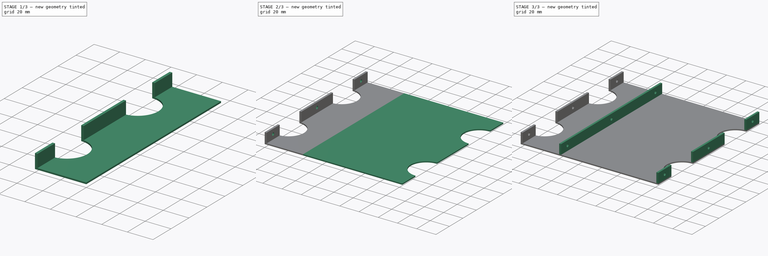
[diagram: build sequence overview — one tinted view per stage of 3, left to right]
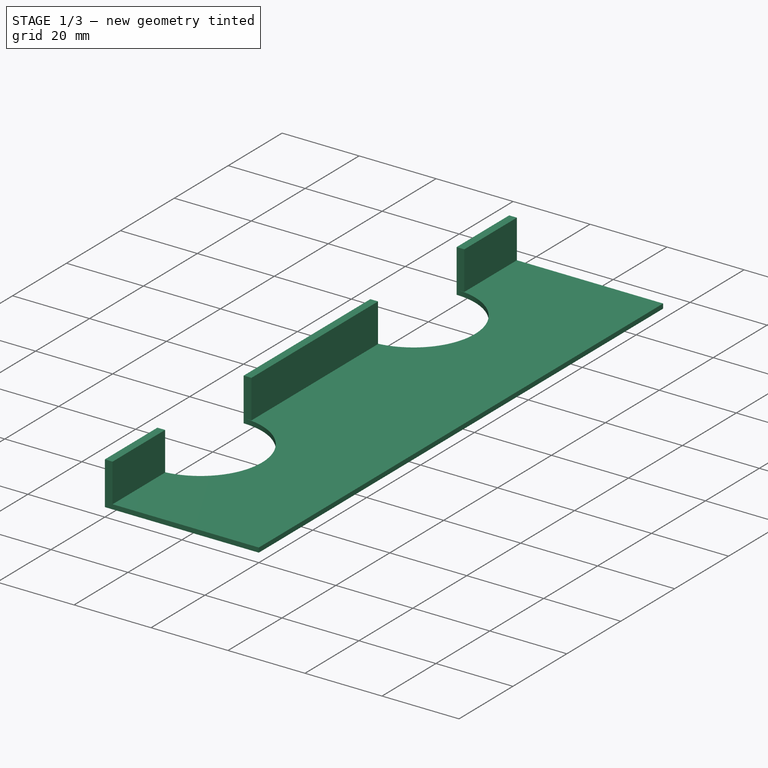
[diagram: stage 1 of 3 — iso view after this stage's code; geometry added in this stage tinted green]
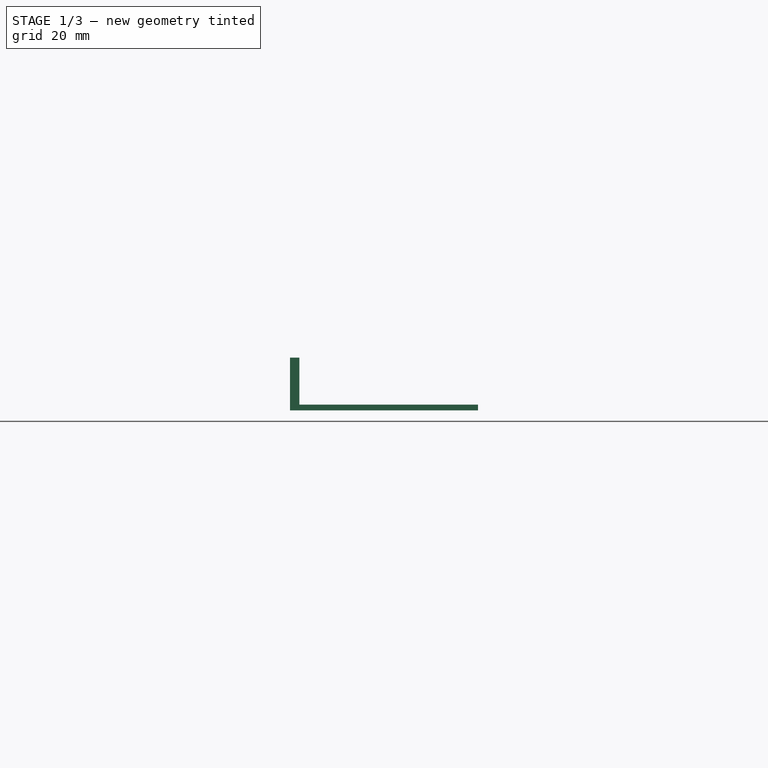
[diagram: stage 1 of 3 — front view after this stage's code; geometry added in this stage tinted green]
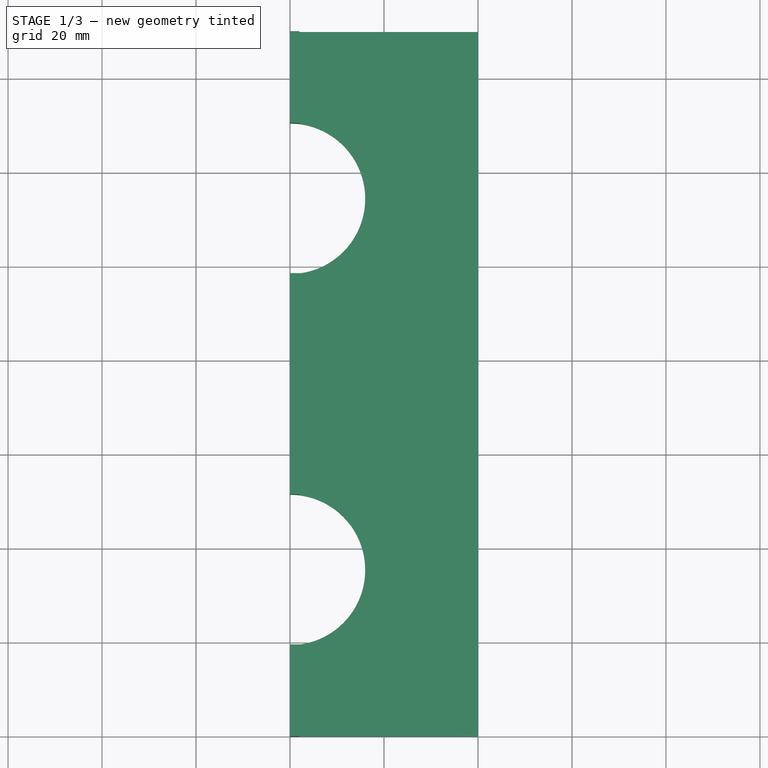
[diagram: stage 1 of 3 — top view after this stage's code; geometry added in this stage tinted green]
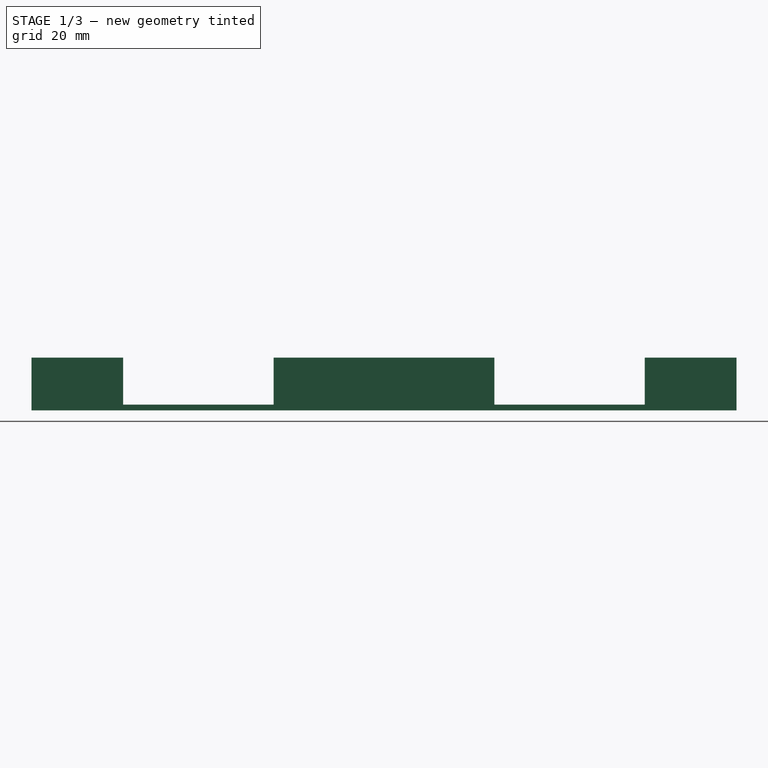
[diagram: stage 1 of 3 — right view after this stage's code; geometry added in this stage tinted green]
FCSTD DOCUMENT  (FreeCAD 0.18R16131 (Git))
Label: Model
License: CreativeCommons Attribution-NonCommercial-NoDerivatives
LicenseURL: http://creativecommons.org/licenses/by-nc-nd/4.0/
objects: Sketcher::SketchObject×6, PartDesign::Pad×4, PartDesign::Pocket×2, PartDesign::Body×2
note: 20 computed .brp shape members not serialized (recipe doc carries the construction recipe); baked Part::Feature solids carry a one-line shape summary decoded from their .brp

FEATURE [PartDesign::Body] Body  label="Left"
  Group = -> [Sketch,Pad,Sketch001,Pad001,Sketch002,Pocket]
  Origin = -> Origin
  Tip = -> Pocket
FEATURE [Sketcher::SketchObject] Sketch003
  MapMode = 5
  Support = -> [XY_Plane001]
  sketch-geometry (8):
    g0: LineSegment StartX=0 StartY=0 StartZ=0 EndX=-40 EndY=0 EndZ=0
    g1: LineSegment StartX=-40 StartY=150 StartZ=0 EndX=0 EndY=150 EndZ=0
    g2: LineSegment StartX=0 StartY=150 StartZ=0 EndX=0 EndY=0 EndZ=0
    g3: ArcOfCircle CenterX=-40 CenterY=114.5 CenterZ=0 NormalX=0 NormalY=0 NormalZ=1 AngleXU=0 Radius=16 StartAngle=4.71239 EndAngle=7.85398
    g4: ArcOfCircle CenterX=-40 CenterY=35.5 CenterZ=0 NormalX=0 NormalY=0 NormalZ=1 AngleXU=0 Radius=16 StartAngle=4.71239 EndAngle=7.85398
    g5: LineSegment StartX=-40 StartY=98.5 StartZ=0 EndX=-40 EndY=51.5 EndZ=0
    g6: LineSegment StartX=-40 StartY=19.5 StartZ=0 EndX=-40 EndY=0 EndZ=0
    g7: LineSegment StartX=-40 StartY=130.5 StartZ=0 EndX=-40 EndY=150 EndZ=0
  constraints (25):
    c: Coincident(g1,g2)
    c: Coincident(g2,g0)
    c: Horizontal(g0)
    c: Horizontal(g1)
    c: Vertical(g2)
    c: Coincident(g0,g-1)
    c: DistanceX(g1,g1) = 40
    c: DistanceY(g0,g1) = 150
    c: Equal(g3,g4)
    c: Vertical(g1,g3)
    c: Vertical(g3,g4)
    c: Vertical(g1,g3)
    c: Vertical(g3,g4)
    c: Diameter(g3) = 32
    c: Vertical(g3,g4)
    c: Coincident(g5,g3)
    c: Coincident(g5,g4)
    c: Coincident(g6,g4)
    c: Coincident(g6,g0)
    c: Vertical(g6)
    c: Coincident(g7,g3)
    c: Coincident(g7,g1)
    c: DistanceY(g5,g5) = 47
    c: Vertical(g3,g3)
    c: Equal(g7,g6)
FEATURE [PartDesign::Pad] Pad002
  Length = 1.2
  Length2 = 100
  Profile = -> Sketch003
  Type = 0
FEATURE [Sketcher::SketchObject] Sketch004
  ExternalGeometry = -> [Pad002]
  MapMode = 5
  Placement = pos=(0,0,1.2) rot=(0,0,1;0rad)
  Support = -> [Pad002]
  sketch-geometry (12):
    g0: LineSegment StartX=-40 StartY=150 StartZ=0 EndX=-38 EndY=150 EndZ=0
    g1: LineSegment StartX=-38 StartY=150 StartZ=0 EndX=-38 EndY=130.5 EndZ=0
    g2: LineSegment StartX=-38 StartY=130.5 StartZ=0 EndX=-40 EndY=130.5 EndZ=0
    g3: LineSegment StartX=-40 StartY=130.5 StartZ=0 EndX=-40 EndY=150 EndZ=0
    g4: LineSegment StartX=-40 StartY=98.5 StartZ=0 EndX=-38 EndY=98.5 EndZ=0
    g5: LineSegment StartX=-38 StartY=98.5 StartZ=0 EndX=-38 EndY=51.5 EndZ=0
    g6: LineSegment StartX=-38 StartY=51.5 StartZ=0 EndX=-40 EndY=51.5 EndZ=0
    g7: LineSegment StartX=-40 StartY=51.5 StartZ=0 EndX=-40 EndY=98.5 EndZ=0
    g8: LineSegment StartX=-40 StartY=19.5 StartZ=0 EndX=-38 EndY=19.5 EndZ=0
    g9: LineSegment StartX=-38 StartY=19.5 StartZ=0 EndX=-38 EndY=0 EndZ=0
    g10: LineSegment StartX=-38 StartY=0 StartZ=0 EndX=-40 EndY=0 EndZ=0
    g11: LineSegment StartX=-40 StartY=0 StartZ=0 EndX=-40 EndY=19.5 EndZ=0
  constraints (33):
    c: Coincident(g0,g1)
    c: Coincident(g1,g2)
    c: Coincident(g2,g3)
    c: Coincident(g3,g0)
    c: Horizontal(g0)
    c: Horizontal(g2)
    c: Vertical(g1)
    c: Vertical(g3)
    c: Coincident(g0,g-3)
    c: Coincident(g4,g5)
    c: Coincident(g5,g6)
    c: Coincident(g6,g7)
    c: Coincident(g7,g4)
    c: Horizontal(g4)
    c: Horizontal(g6)
    c: Vertical(g5)
    c: Vertical(g7)
    c: Coincident(g4,g-4)
    c: Coincident(g8,g9)
    c: Coincident(g9,g10)
    c: Coincident(g10,g11)
    c: Coincident(g11,g8)
    c: Horizontal(g8)
    c: Horizontal(g10)
    c: Vertical(g9)
    c: Vertical(g11)
    c: Coincident(g8,g-5)
    c: Equal(g10,g6)
    c: Equal(g6,g2)
    c: DistanceX(g0,g0) = 2
    c: Horizontal(g-3,g1)
    c: Horizontal(g-4,g5)
    c: Horizontal(g-5,g9)
FEATURE [PartDesign::Pad] Pad003
  BaseFeature = -> Pad002
  Length = 10
  Length2 = 100
  Profile = -> Sketch004
  Type = 0
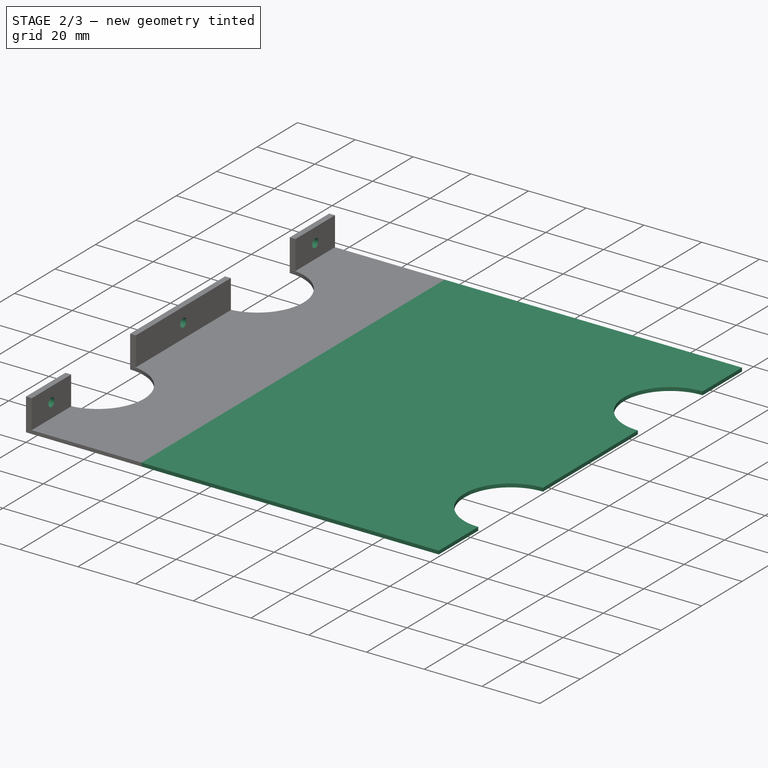
[diagram: stage 2 of 3 — iso view after this stage's code; geometry added in this stage tinted green]
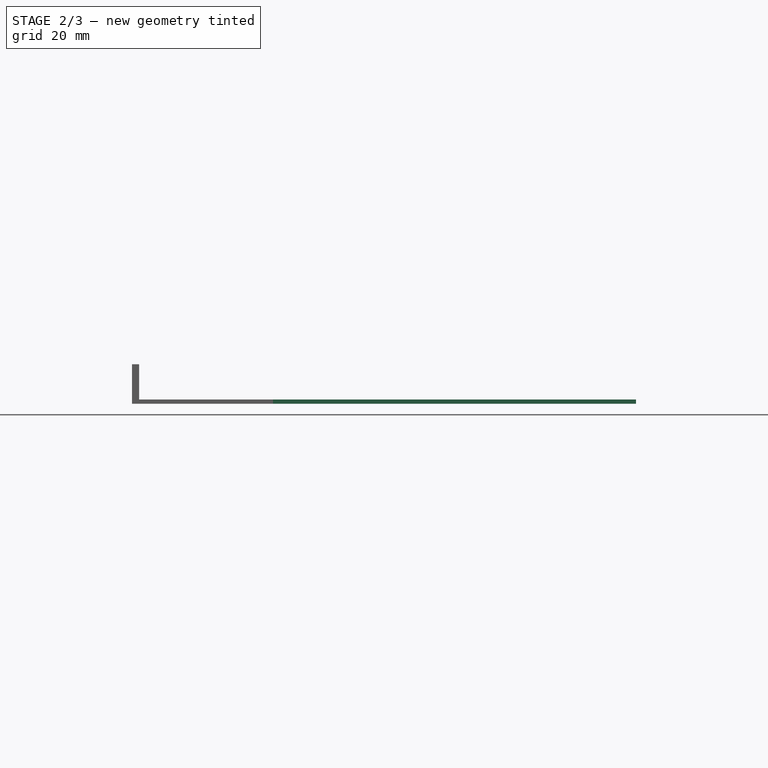
[diagram: stage 2 of 3 — front view after this stage's code; geometry added in this stage tinted green]
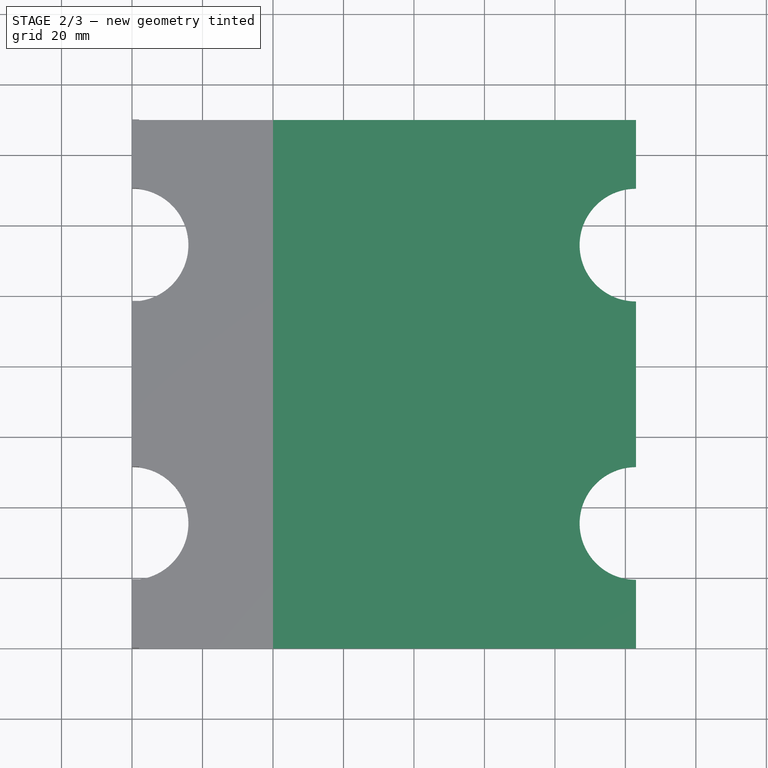
[diagram: stage 2 of 3 — top view after this stage's code; geometry added in this stage tinted green]
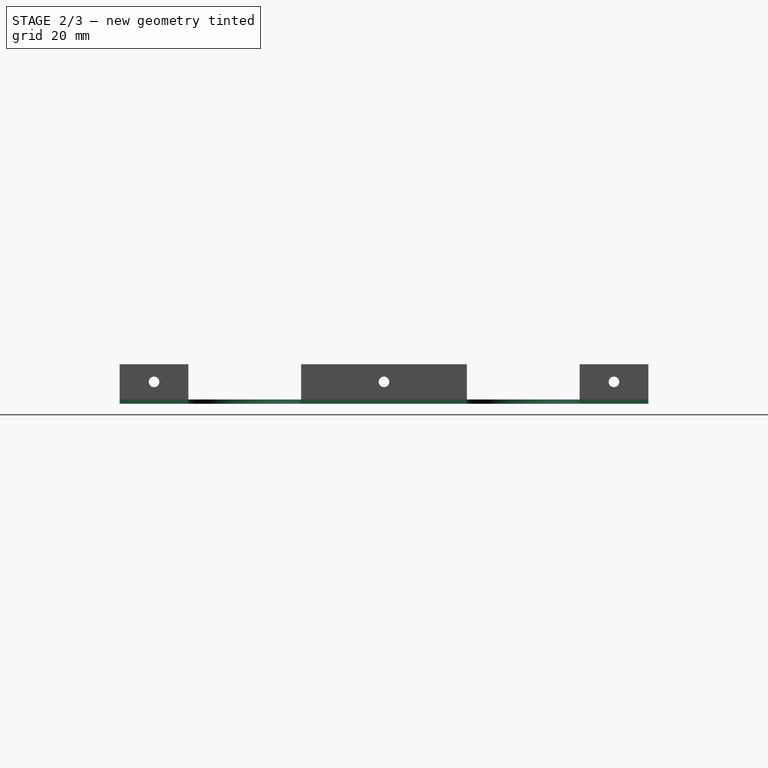
[diagram: stage 2 of 3 — right view after this stage's code; geometry added in this stage tinted green]
FEATURE [Sketcher::SketchObject] Sketch
  MapMode = 5
  Support = -> [XY_Plane]
  sketch-geometry (8):
    g0: LineSegment StartX=0 StartY=0 StartZ=0 EndX=0 EndY=150 EndZ=0
    g1: LineSegment StartX=0 StartY=150 StartZ=0 EndX=103 EndY=150 EndZ=0
    g2: LineSegment StartX=0 StartY=0 StartZ=0 EndX=103 EndY=0 EndZ=0
    g3: LineSegment StartX=103 StartY=150 StartZ=0 EndX=103 EndY=130.5 EndZ=0
    g4: LineSegment StartX=103 StartY=0 StartZ=0 EndX=103 EndY=19.5 EndZ=0
    g5: LineSegment StartX=103 StartY=98.5 StartZ=0 EndX=103 EndY=51.5 EndZ=0
    g6: ArcOfCircle CenterX=103 CenterY=114.5 CenterZ=0 NormalX=0 NormalY=0 NormalZ=1 AngleXU=0 Radius=16 StartAngle=1.5708 EndAngle=4.71239
    g7: ArcOfCircle CenterX=103 CenterY=35.5 CenterZ=0 NormalX=0 NormalY=0 NormalZ=1 AngleXU=0 Radius=16 StartAngle=1.5708 EndAngle=4.71239
  constraints (25):
    c: Coincident(g0,g-1)
    c: PointOnObject(g0,g-2)
    c: Coincident(g1,g0)
    c: Horizontal(g1)
    c: Coincident(g2,g0)
    c: PointOnObject(g2,g-1)
    c: Equal(g1,g2)
    c: DistanceX(g1,g1) = 103
    c: DistanceY(g0,g0) = 150
    c: Coincident(g3,g1)
    c: Vertical(g3)
    c: Coincident(g4,g2)
    c: Vertical(g4)
    c: Equal(g3,g4)
    c: Vertical(g5)
    c: DistanceY(g5,g5) = 47
    c: Vertical(g3,g5)
    c: Coincident(g6,g3)
    c: Coincident(g6,g5)
    c: Coincident(g7,g5)
    c: Coincident(g7,g4)
    c: Vertical(g3,g6)
    c: Vertical(g6,g7)
    c: Diameter(g6) = 32
    c: Diameter(g7) = 32
FEATURE [PartDesign::Pad] Pad
  Length = 1.2
  Length2 = 100
  Profile = -> Sketch
  Type = 0
FEATURE [Sketcher::SketchObject] Sketch005
  ExternalGeometry = -> [Pad003]
  MapMode = 5
  Placement = pos=(-40,0,0) rot=(0.57735,-0.57735,-0.57735;2.0944rad)
  Support = -> [Pad003]
  sketch-geometry (3):
    g0: Circle CenterX=-140.25 CenterY=6.2 CenterZ=0 NormalX=0 NormalY=0 NormalZ=1 AngleXU=0 Radius=1.5
    g1: Circle CenterX=-75 CenterY=6.2 CenterZ=0 NormalX=0 NormalY=0 NormalZ=1 AngleXU=0 Radius=1.5
    g2: Circle CenterX=-9.75 CenterY=6.2 CenterZ=0 NormalX=0 NormalY=0 NormalZ=1 AngleXU=0 Radius=1.5
  constraints (6):
    c: Equal(g0,g1)
    c: Equal(g1,g2)
    c: Diameter(g0) = 3
    c: Symmetric(g-6,g-5,g0)
    c: Symmetric(g-7,g-3,g1)
    c: Symmetric(g-8,g-4,g2)
FEATURE [PartDesign::Pocket] Pocket001
  BaseFeature = -> Pad003
  Length = 5
  Length2 = 100
  Profile = -> Sketch005
  Type = 1
FEATURE [PartDesign::Body] Body001  label="Right"
  Group = -> [Sketch003,Pad002,Sketch004,Pad003,Sketch005,Pocket001]
  Origin = -> Origin001
  Tip = -> Pocket001
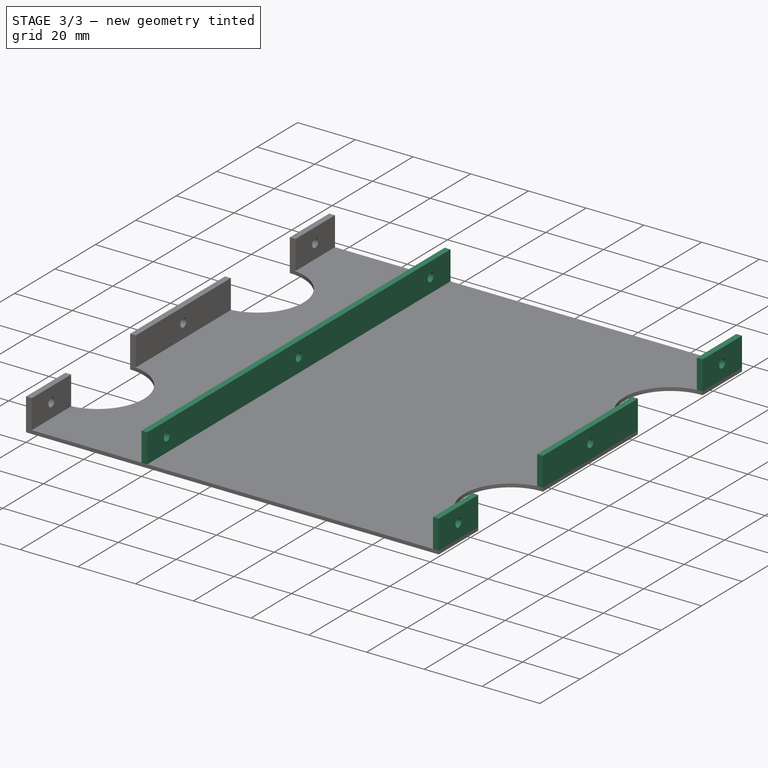
[diagram: stage 3 of 3 — iso view after this stage's code; geometry added in this stage tinted green]
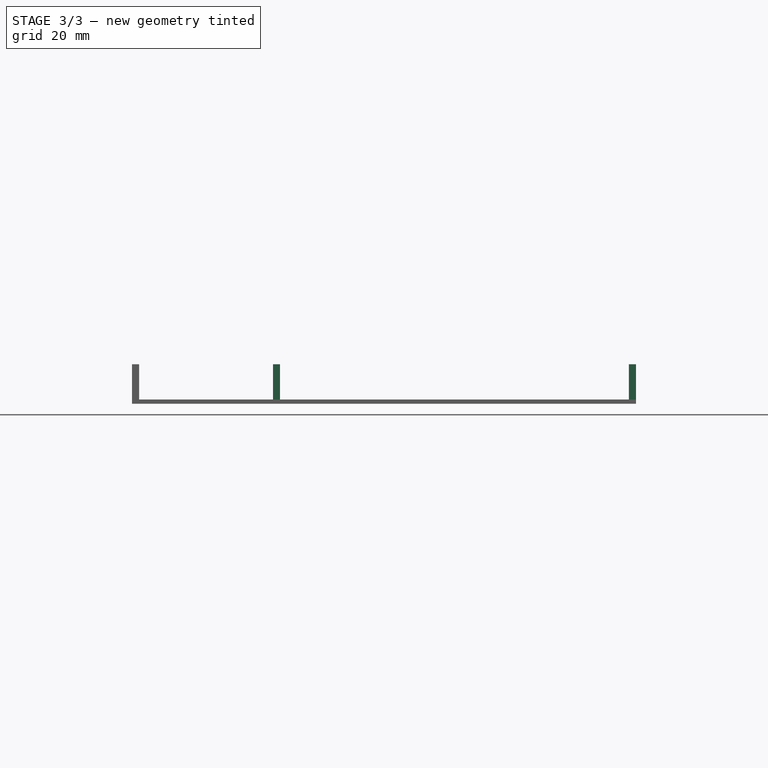
[diagram: stage 3 of 3 — front view after this stage's code; geometry added in this stage tinted green]
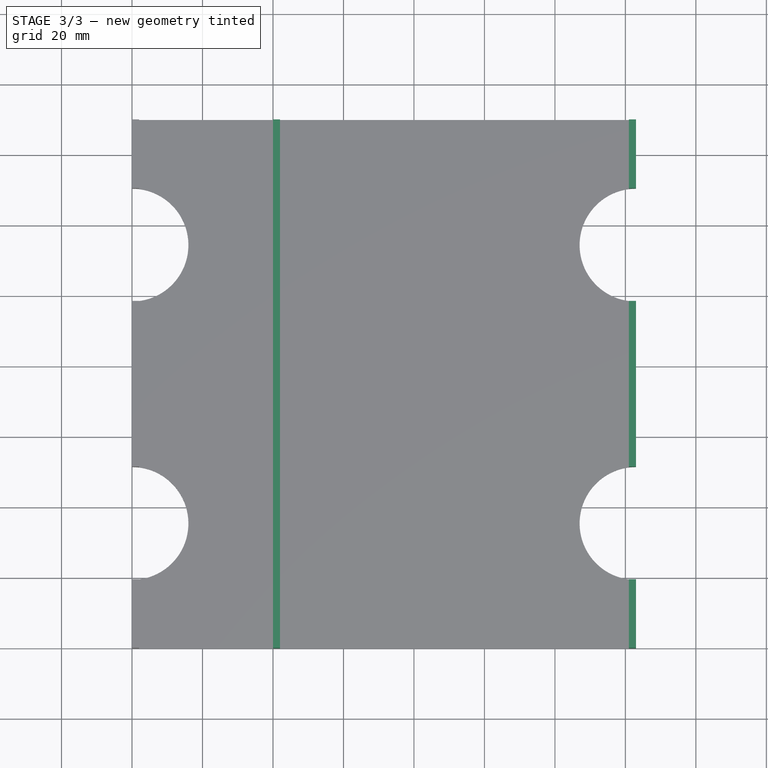
[diagram: stage 3 of 3 — top view after this stage's code; geometry added in this stage tinted green]
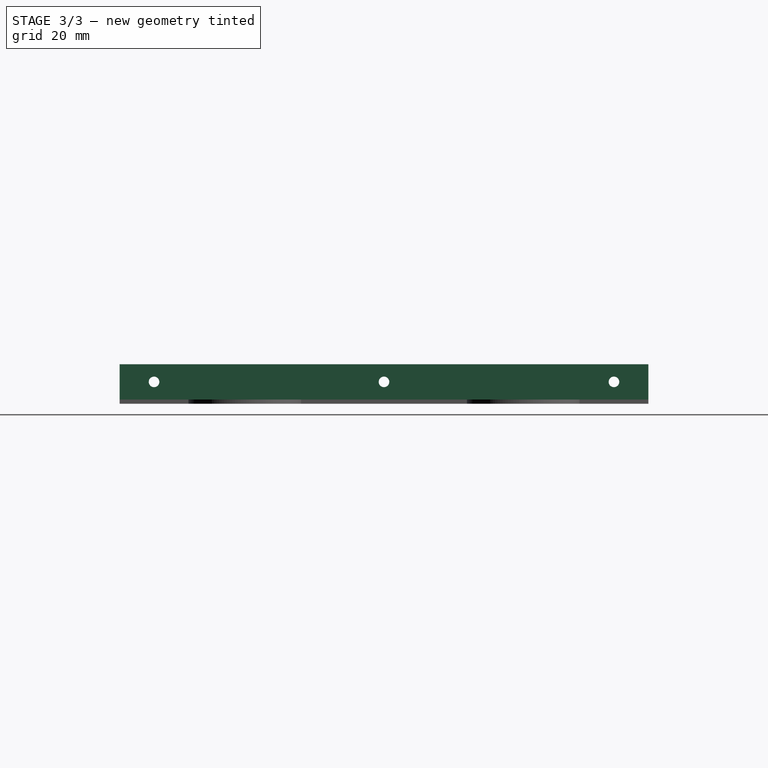
[diagram: stage 3 of 3 — right view after this stage's code; geometry added in this stage tinted green]
FEATURE [Sketcher::SketchObject] Sketch001
  ExternalGeometry = -> [Pad]
  MapMode = 5
  Placement = pos=(0,0,1.2) rot=(0,0,1;0rad)
  Support = -> [Pad]
  sketch-geometry (16):
    g0: LineSegment StartX=0 StartY=150 StartZ=0 EndX=2 EndY=150 EndZ=0
    g1: LineSegment StartX=2 StartY=150 StartZ=0 EndX=2 EndY=0 EndZ=0
    g2: LineSegment StartX=2 StartY=0 StartZ=0 EndX=0 EndY=0 EndZ=0
    g3: LineSegment StartX=0 StartY=0 StartZ=0 EndX=0 EndY=150 EndZ=0
    g4: LineSegment StartX=103 StartY=150 StartZ=0 EndX=101 EndY=150 EndZ=0
    g5: LineSegment StartX=101 StartY=150 StartZ=0 EndX=101 EndY=130.5 EndZ=0
    g6: LineSegment StartX=101 StartY=130.5 StartZ=0 EndX=103 EndY=130.5 EndZ=0
    g7: LineSegment StartX=103 StartY=130.5 StartZ=0 EndX=103 EndY=150 EndZ=0
    g8: LineSegment StartX=103 StartY=98.5 StartZ=0 EndX=101 EndY=98.5 EndZ=0
    g9: LineSegment StartX=101 StartY=98.5 StartZ=0 EndX=101 EndY=51.5 EndZ=0
    g10: LineSegment StartX=101 StartY=51.5 StartZ=0 EndX=103 EndY=51.5 EndZ=0
    g11: LineSegment StartX=103 StartY=51.5 StartZ=0 EndX=103 EndY=98.5 EndZ=0
    g12: LineSegment StartX=103 StartY=0 StartZ=0 EndX=101 EndY=0 EndZ=0
    g13: LineSegment StartX=101 StartY=0 StartZ=0 EndX=101 EndY=19.5 EndZ=0
    g14: LineSegment StartX=101 StartY=19.5 StartZ=0 EndX=103 EndY=19.5 EndZ=0
    g15: LineSegment StartX=103 StartY=19.5 StartZ=0 EndX=103 EndY=0 EndZ=0
  constraints (44):
    c: Coincident(g0,g1)
    c: Coincident(g1,g2)
    c: Coincident(g2,g3)
    c: Coincident(g3,g0)
    c: Horizontal(g0)
    c: Horizontal(g2)
    c: Vertical(g1)
    c: Vertical(g3)
    c: Coincident(g0,g-3)
    c: PointOnObject(g1,g-1)
    c: Coincident(g4,g5)
    c: Coincident(g5,g6)
    c: Coincident(g6,g7)
    c: Coincident(g7,g4)
    c: Horizontal(g4)
    c: Horizontal(g6)
    c: Vertical(g5)
    c: Vertical(g7)
    c: Coincident(g4,g-4)
    c: Coincident(g8,g9)
    c: Coincident(g9,g10)
    c: Coincident(g10,g11)
    c: Coincident(g11,g8)
    c: Horizontal(g8)
    c: Horizontal(g10)
    c: Vertical(g9)
    c: Vertical(g11)
    c: Coincident(g8,g-5)
    c: Horizontal(g5,g-4)
    c: Horizontal(g9,g-5)
    c: Equal(g0,g4)
    c: Equal(g4,g10)
    c: DistanceX(g0,g0) = 2
    c: Coincident(g12,g13)
    c: Coincident(g13,g14)
    c: Coincident(g14,g15)
    c: Coincident(g15,g12)
    c: Horizontal(g12)
    c: Horizontal(g14)
    c: Vertical(g13)
    c: Vertical(g15)
    c: Coincident(g12,g-6)
    c: Horizontal(g13,g-6)
    c: Equal(g10,g14)
FEATURE [PartDesign::Pad] Pad001
  BaseFeature = -> Pad
  Length = 10
  Length2 = 100
  Profile = -> Sketch001
  Type = 0
FEATURE [Sketcher::SketchObject] Sketch002
  ExternalGeometry = -> [Pad001]
  MapMode = 5
  Placement = pos=(0,0,0) rot=(0.57735,-0.57735,-0.57735;2.0944rad)
  Support = -> [Pad001]
  sketch-geometry (3):
    g0: Circle CenterX=-75 CenterY=6.2 CenterZ=0 NormalX=0 NormalY=0 NormalZ=1 AngleXU=0 Radius=1.5
    g1: Circle CenterX=-140.25 CenterY=6.2 CenterZ=0 NormalX=0 NormalY=0 NormalZ=1 AngleXU=0 Radius=1.5
    g2: Circle CenterX=-9.75 CenterY=6.2 CenterZ=0 NormalX=0 NormalY=0 NormalZ=1 AngleXU=0 Radius=1.5
  constraints (9):
    c: Equal(g0,g1)
    c: Diameter(g0) = 3
    c: DistanceY(g1,g-3) = 5
    c: DistanceY(g0,g-3) = 5
    c: DistanceX(g-3,g1) = 9.75
    c: DistanceX(g-3,g0) = 75
    c: Equal(g0,g2)
    c: DistanceX(g2,g-3) = 9.75
    c: DistanceY(g2,g-3) = 5
FEATURE [PartDesign::Pocket] Pocket
  BaseFeature = -> Pad001
  Length = 5
  Length2 = 100
  Profile = -> Sketch002
  Type = 1
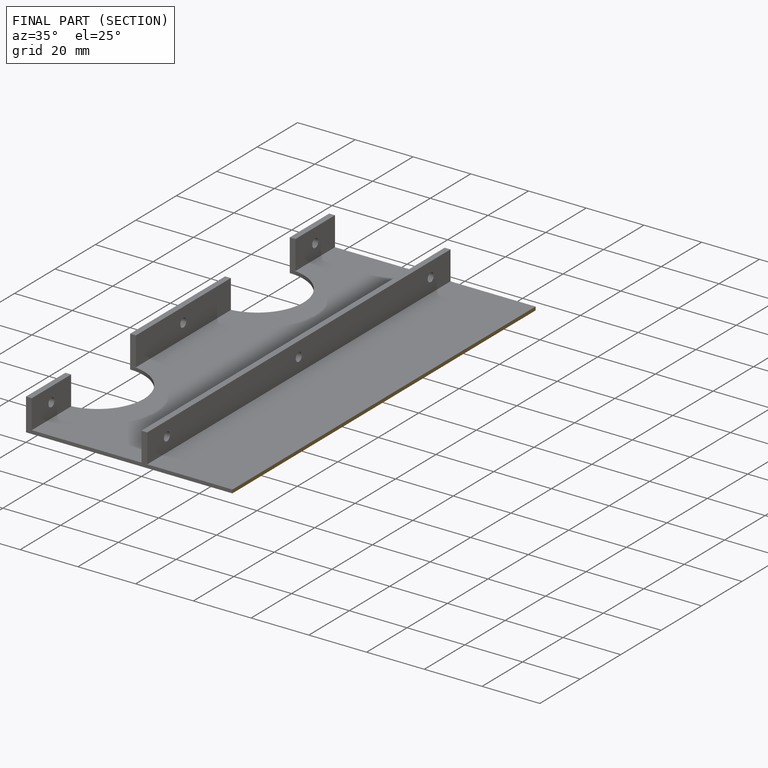
[diagram: finished part — half-section view (interior)]
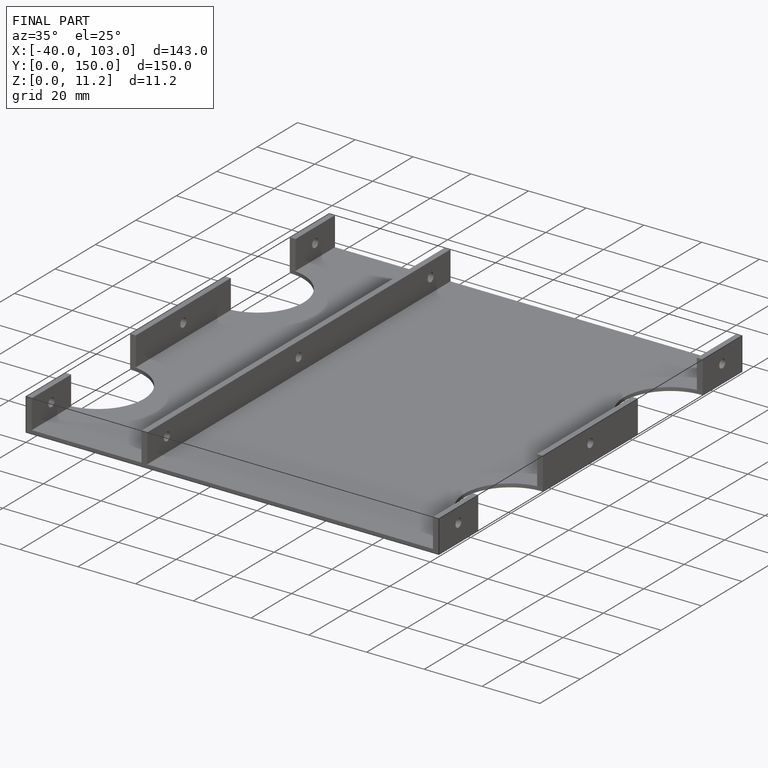
[diagram: finished part — iso view with bounding-box wireframe]
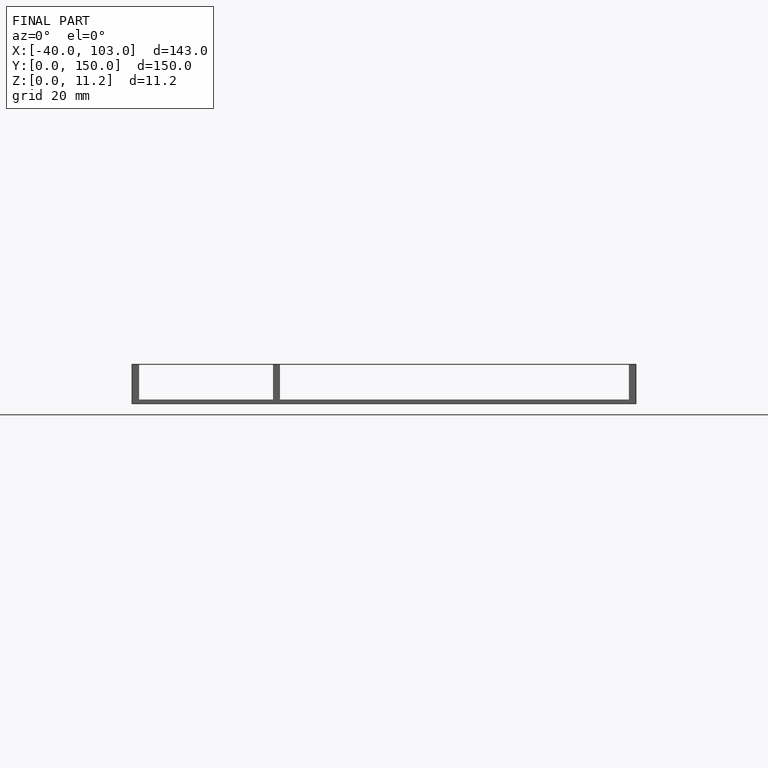
[diagram: finished part — front view with bounding-box wireframe]
